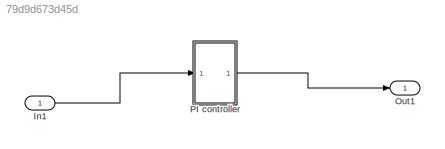
MODEL slx_79d9d673d45d
KIND model
CONFIG AbsTol = auto
CONFIG EnableMultiTasking = off
CONFIG FixedStep = auto
CONFIG MaxStep = auto
CONFIG MinStep = auto
CONFIG RelTol = 1e-3
CONFIG SampleTimeConstraint = Unconstrained
CONFIG SolverName = FixedStepAuto
CONFIG StartTime = 0.0
CONFIG StopTime = 10.0
BLOCK [Inport] In1
BLOCK [Outport] Out1
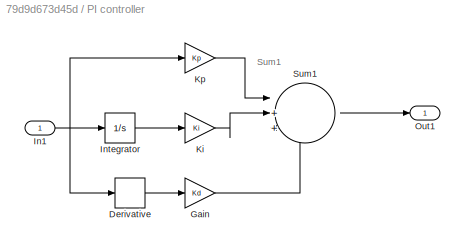
BLOCK [SubSystem] PI controller
  Ports = [1, 1]
  RequestExecContextInheritance = off
BLOCK [Derivative] PI controller/Derivative
  CoefficientInTFapproximation = 1/N
BLOCK [Gain] PI controller/Gain
  Gain = Kd
BLOCK [Inport] PI controller/In1
BLOCK [Integrator] PI controller/Integrator
  Ports = [1, 1]
BLOCK [Gain] PI controller/Ki
  Gain = Ki
BLOCK [Gain] PI controller/Kp
  Gain = Kp
BLOCK [Outport] PI controller/Out1
BLOCK [Sum] PI controller/Sum1
  Inputs = |+++
  Ports = [3, 1]
ANNOTATION PI controller: Sum1
LINE In1:1 -> PI controller:1
LINE PI controller/Derivative:1 -> PI controller/Gain:1
LINE PI controller/Gain:1 -> PI controller/Sum1:3
NET PI controller/In1:1 -> PI controller/Derivative:1, PI controller/Integrator:1, PI controller/Kp:1
LINE PI controller/Integrator:1 -> PI controller/Ki:1
LINE PI controller/Ki:1 -> PI controller/Sum1:2
LINE PI controller/Kp:1 -> PI controller/Sum1:1
LINE PI controller/Sum1:1 -> PI controller/Out1:1
LINE PI controller:1 -> Out1:1
note: NET lines group one-source signal fan-out (src -> all destinations, sorted); 1:1 wires keep LINE
